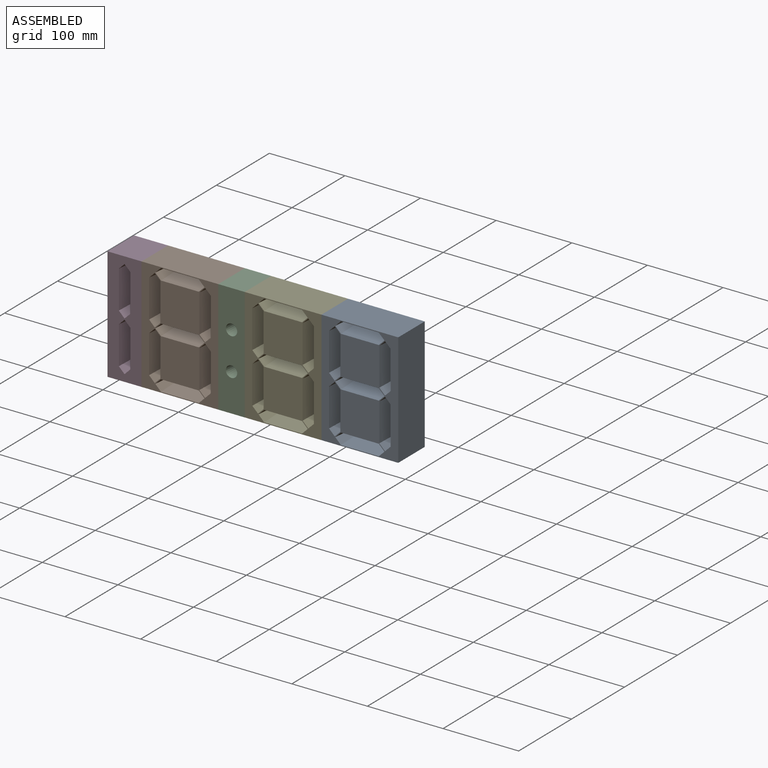
[diagram: assembled view]
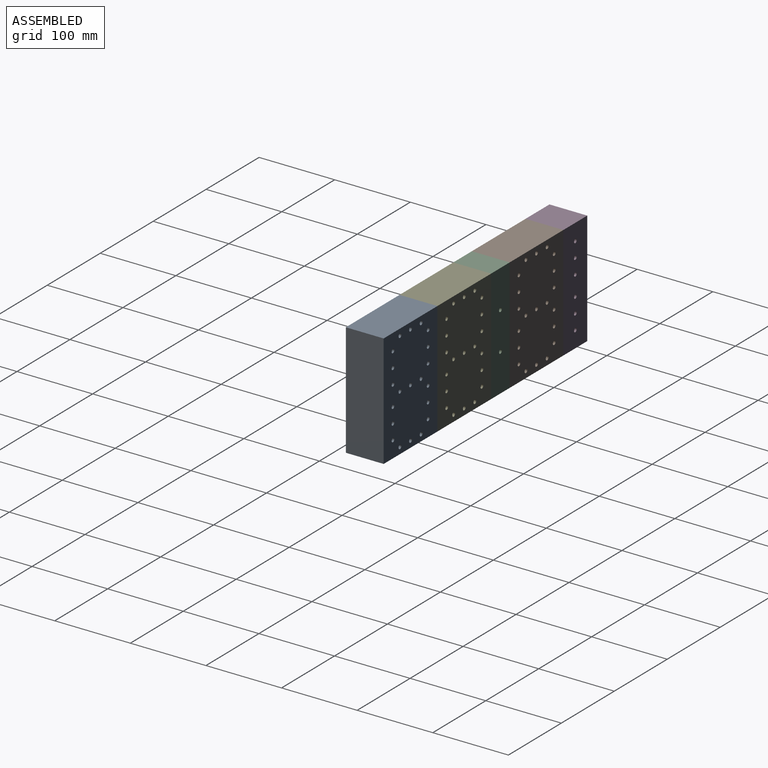
[diagram: assembled view, second angle]
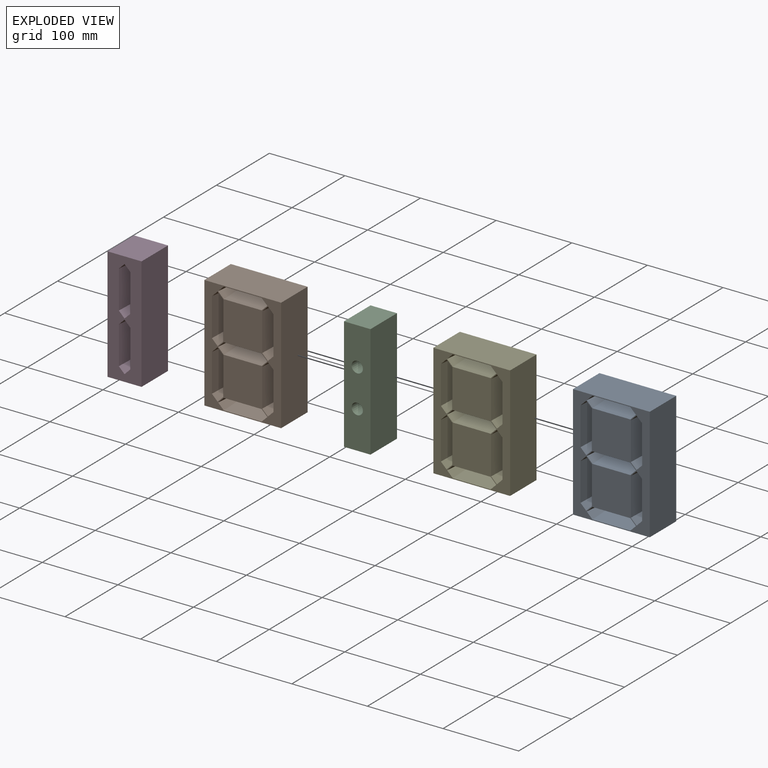
[diagram: exploded view]
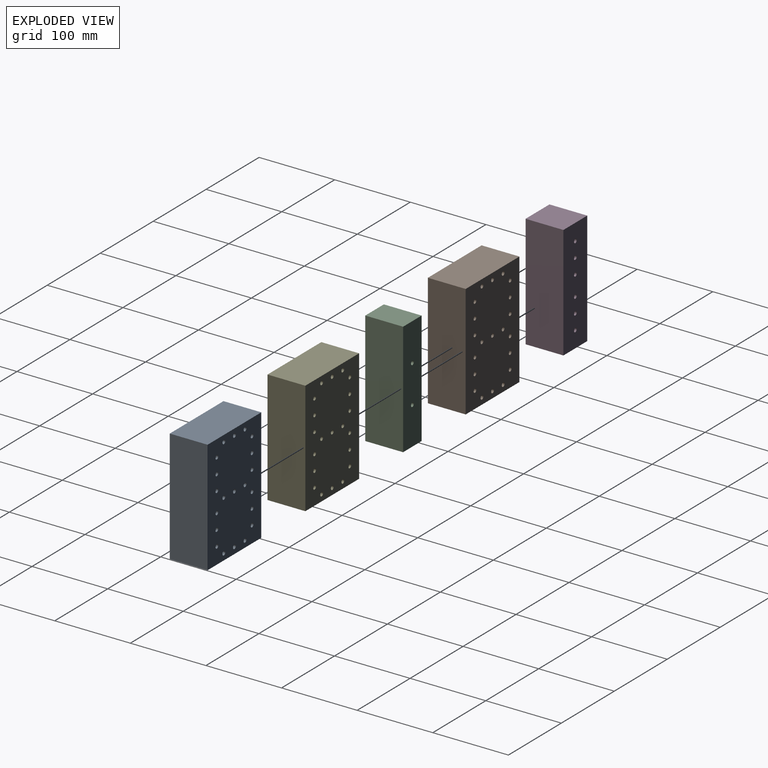
[diagram: exploded view, second angle]
ASSEMBLY  parts=5 mates=4
PART A: 76 faces, bbox 101.5x50x150 mm
  f0: cylinder r=2.55mm len=5.1mm, axis (0,-1,0), area 40.1mm2, adj f25,f69
  f1: cylinder r=2.55mm len=5.1mm, axis (0,-1,0), area 40.1mm2, adj f25,f69
  f2: cylinder r=2.55mm len=5.1mm, axis (0,-1,0), area 40.1mm2, adj f25,f48
  f3: cylinder r=2.55mm len=5.1mm, axis (0,-1,0), area 40.1mm2, adj f25,f48
  f4: cylinder r=2.55mm len=5.1mm, axis (0,-1,0), area 40.1mm2, adj f25,f48
  f5: cylinder r=2.55mm len=5.1mm, axis (0,-1,0), area 40.1mm2, adj f25,f55
  f6: cylinder r=2.55mm len=5.1mm, axis (0,-1,0), area 40.1mm2, adj f25,f55
  f7: cylinder r=2.55mm len=5.1mm, axis (0,-1,0), area 40.1mm2, adj f25,f55
  f8: cylinder r=2.55mm len=5.1mm, axis (0,-1,0), area 40.1mm2, adj f25,f27
  f9: cylinder r=2.55mm len=5.1mm, axis (0,-1,0), area 40.1mm2, adj f25,f27
  f10: cylinder r=2.55mm len=5.1mm, axis (0,-1,0), area 40.1mm2, adj f25,f27
  f11: cylinder r=2.55mm len=5.1mm, axis (0,-1,0), area 40.1mm2, adj f25,f34
  f12: cylinder r=2.55mm len=5.1mm, axis (0,-1,0), area 40.1mm2, adj f25,f34
  f13: cylinder r=2.55mm len=5.1mm, axis (0,-1,0), area 40.1mm2, adj f25,f34
  f14: cylinder r=2.55mm len=5.1mm, axis (0,-1,0), area 40.1mm2, adj f25,f41
  f15: cylinder r=2.55mm len=5.1mm, axis (0,-1,0), area 40.1mm2, adj f25,f41
  f16: cylinder r=2.55mm len=5.1mm, axis (0,-1,0), area 40.1mm2, adj f25,f41
  f17: cylinder r=2.55mm len=5.1mm, axis (0,-1,0), area 40.1mm2, adj f25,f62
  f18: cylinder r=2.55mm len=5.1mm, axis (0,-1,0), area 40.1mm2, adj f25,f62
  f19: cylinder r=2.55mm len=5.1mm, axis (0,-1,0), area 40.1mm2, adj f25,f62
  f20: cylinder r=2.55mm len=5.1mm, axis (0,-1,0), area 40.1mm2, adj f25,f69
  f21: plane 150x50mm, normal (-1,0,0), area 7500mm2, adj f22,f24,f25,f26
  f22: plane 101.5x50mm, normal (0,0,-1), area 5075mm2, adj f21,f23,f25,f26
  f23: plane 150x50mm, normal (1,0,0), area 7500mm2, adj f22,f24,f25,f26
  f24: plane 101.5x50mm, normal (0,0,1), area 5075mm2, adj f21,f23,f25,f26
  f25: plane 150x101.5mm, normal (0,1,0), area 14796mm2, adj f0,f1,f2,f3,f4,f5,f6,f7
  f26: plane 150x101.5mm, normal (0,-1,0), area 9178.5mm2, adj f21,f22,f23,f24,f28,f29,f30,f31
  f27: plane 55.69x8.36mm, normal (0,-1,0), area 369.2mm2, adj f8,f9,f10,f28,f29,f30,f31,f32
  f28: plane 47.5x8.88mm, normal (-0.71,-0.07,0.71), area 393.2mm2, adj f26,f27,f29,f33
  f29: plane 50.09x47.5mm, normal (-1,-0.07,0), area 2319.4mm2, adj f26,f27,f28,f30
  f30: plane 47.5x8.88mm, normal (-0.71,-0.07,-0.71), area 393.2mm2, adj f26,f27,f29,f31
  f31: plane 47.5x8.88mm, normal (0.71,-0.07,-0.71), area 393.2mm2, adj f26,f27,f30,f32
  f32: plane 50.09x47.5mm, normal (1,-0.07,0), area 2319.4mm2, adj f26,f27,f31,f33
  f33: plane 47.5x8.88mm, normal (0.71,-0.07,0.71), area 393.2mm2, adj f26,f27,f28,f32
  f34: plane 55.69x8.36mm, normal (0,-1,0), area 369.2mm2, adj f11,f12,f13,f35,f36,f37,f38,f39
  f35: plane 47.5x8.88mm, normal (0.71,-0.07,0.71), area 393.2mm2, adj f26,f34,f36,f40
  f36: plane 50.09x47.5mm, normal (0,-0.07,1), area 2319.4mm2, adj f26,f34,f35,f37
  f37: plane 47.5x8.88mm, normal (-0.71,-0.07,0.71), area 393.2mm2, adj f26,f34,f36,f38
  f38: plane 47.5x8.88mm, normal (-0.71,-0.07,-0.71), area 393.2mm2, adj f26,f34,f37,f39
  f39: plane 50.09x47.5mm, normal (0,-0.07,-1), area 2319.4mm2, adj f26,f34,f38,f40
  f40: plane 47.5x8.88mm, normal (0.71,-0.07,-0.71), area 393.2mm2, adj f26,f34,f35,f39
  f41: plane 55.69x8.36mm, normal (0,-1,0), area 369.2mm2, adj f14,f15,f16,f42,f43,f44,f45,f46
  f42: plane 47.5x8.88mm, normal (0.71,-0.07,-0.71), area 393.2mm2, adj f26,f41,f43,f47
  f43: plane 50.09x47.5mm, normal (1,-0.07,0), area 2319.4mm2, adj f26,f41,f42,f44
  f44: plane 47.5x8.88mm, normal (0.71,-0.07,0.71), area 393.2mm2, adj f26,f41,f43,f45
  f45: plane 47.5x8.88mm, normal (-0.71,-0.07,0.71), area 393.2mm2, adj f26,f41,f44,f46
  f46: plane 50.09x47.5mm, normal (-1,-0.07,0), area 2319.4mm2, adj f26,f41,f45,f47
  f47: plane 47.5x8.88mm, normal (-0.71,-0.07,-0.71), area 393.2mm2, adj f26,f41,f42,f46
  f48: plane 55.69x8.36mm, normal (0,-1,0), area 369.2mm2, adj f2,f3,f4,f49,f50,f51,f52,f53
  f49: plane 47.5x8.88mm, normal (0.71,-0.07,-0.71), area 393.2mm2, adj f26,f48,f50,f54
  f50: plane 50.09x47.5mm, normal (1,-0.07,0), area 2319.4mm2, adj f26,f48,f49,f51
  f51: plane 47.5x8.88mm, normal (0.71,-0.07,0.71), area 393.2mm2, adj f26,f48,f50,f52
  f52: plane 47.5x8.88mm, normal (-0.71,-0.07,0.71), area 393.2mm2, adj f26,f48,f51,f53
  f53: plane 50.09x47.5mm, normal (-1,-0.07,0), area 2319.4mm2, adj f26,f48,f52,f54
  f54: plane 47.5x8.88mm, normal (-0.71,-0.07,-0.71), area 393.2mm2, adj f26,f48,f49,f53
  f55: plane 55.69x8.36mm, normal (0,-1,0), area 369.2mm2, adj f5,f6,f7,f56,f57,f58,f59,f60
  f56: plane 47.5x8.88mm, normal (0.71,-0.07,0.71), area 393.2mm2, adj f26,f55,f57,f61
  f57: plane 50.09x47.5mm, normal (0,-0.07,1), area 2319.4mm2, adj f26,f55,f56,f58
  f58: plane 47.5x8.88mm, normal (-0.71,-0.07,0.71), area 393.2mm2, adj f26,f55,f57,f59
  f59: plane 47.5x8.88mm, normal (-0.71,-0.07,-0.71), area 393.2mm2, adj f26,f55,f58,f60
  f60: plane 50.09x47.5mm, normal (0,-0.07,-1), area 2319.4mm2, adj f26,f55,f59,f61
  f61: plane 47.5x8.88mm, normal (0.71,-0.07,-0.71), area 393.2mm2, adj f26,f55,f56,f60
  f62: plane 55.69x8.36mm, normal (0,-1,0), area 369.2mm2, adj f17,f18,f19,f63,f64,f65,f66,f67
  f63: plane 47.5x8.88mm, normal (-0.71,-0.07,0.71), area 393.2mm2, adj f26,f62,f64,f68
  f64: plane 50.09x47.5mm, normal (-1,-0.07,0), area 2319.4mm2, adj f26,f62,f63,f65
  f65: plane 47.5x8.88mm, normal (-0.71,-0.07,-0.71), area 393.2mm2, adj f26,f62,f64,f66
  f66: plane 47.5x8.88mm, normal (0.71,-0.07,-0.71), area 393.2mm2, adj f26,f62,f65,f67
  f67: plane 50.09x47.5mm, normal (1,-0.07,0), area 2319.4mm2, adj f26,f62,f66,f68
  f68: plane 47.5x8.88mm, normal (0.71,-0.07,0.71), area 393.2mm2, adj f26,f62,f63,f67
  f69: plane 55.69x8.36mm, normal (0,-1,0), area 369.2mm2, adj f0,f1,f20,f70,f71,f72,f73,f74
  f70: plane 47.5x8.88mm, normal (0.71,-0.07,0.71), area 393.2mm2, adj f26,f69,f71,f75
  f71: plane 50.09x47.5mm, normal (0,-0.07,1), area 2319.4mm2, adj f26,f69,f70,f72
  f72: plane 47.5x8.88mm, normal (-0.71,-0.07,0.71), area 393.2mm2, adj f26,f69,f71,f73
  f73: plane 47.5x8.88mm, normal (-0.71,-0.07,-0.71), area 393.2mm2, adj f26,f69,f72,f74
  f74: plane 50.09x47.5mm, normal (0,-0.07,-1), area 2319.4mm2, adj f26,f69,f73,f75
  f75: plane 47.5x8.88mm, normal (0.71,-0.07,-0.71), area 393.2mm2, adj f26,f69,f70,f74
PART B: same geometry as A
PART C: 12 faces, bbox 35x50x150 mm
  f0: cylinder r=2.55mm len=5.1mm, axis (0,-1,0), area 40.1mm2, adj f7,f8
  f1: cylinder r=2.55mm len=5.1mm, axis (0,-1,0), area 40.1mm2, adj f7,f10
  f2: plane 150x35mm, normal (0,-1,0), area 4896.6mm2, adj f3,f4,f5,f6,f9,f11
  f3: plane 150x50mm, normal (-1,0,0), area 7500mm2, adj f2,f4,f6,f7
  f4: plane 50x35mm, normal (0,0,-1), area 1750mm2, adj f2,f3,f5,f7
  f5: plane 150x50mm, normal (1,0,0), area 7500mm2, adj f2,f4,f6,f7
  f6: plane 50x35mm, normal (0,0,1), area 1750mm2, adj f2,f3,f5,f7
  f7: plane 150x35mm, normal (0,1,0), area 5209.1mm2, adj f0,f1,f3,f4,f5,f6
  f8: plane 8.36x8.36mm, normal (0,-1,0), area 34.4mm2, adj f0,f9
  f9: cone r=7.5mm half-angle=4deg, axis (0,-1,0), area 1747mm2, adj f2,f8
  f10: plane 8.36x8.36mm, normal (0,-1,0), area 34.4mm2, adj f1,f11
  f11: cone r=7.5mm half-angle=4deg, axis (0,-1,0), area 1747mm2, adj f2,f10
PART D: 26 faces, bbox 45x50x150 mm
  f0: cylinder r=2.55mm len=5.1mm, axis (0,-1,0), area 40.1mm2, adj f10,f19
  f1: cylinder r=2.55mm len=5.1mm, axis (0,-1,0), area 40.1mm2, adj f10,f19
  f2: cylinder r=2.55mm len=5.1mm, axis (0,-1,0), area 40.1mm2, adj f10,f12
  f3: cylinder r=2.55mm len=5.1mm, axis (0,-1,0), area 40.1mm2, adj f10,f12
  f4: cylinder r=2.55mm len=5.1mm, axis (0,-1,0), area 40.1mm2, adj f10,f12
  f5: cylinder r=2.55mm len=5.1mm, axis (0,-1,0), area 40.1mm2, adj f10,f19
  f6: plane 150x50mm, normal (-1,0,0), area 7500mm2, adj f7,f9,f10,f11
  f7: plane 50x45mm, normal (0,0,-1), area 2250mm2, adj f6,f8,f10,f11
  f8: plane 150x50mm, normal (1,0,0), area 7500mm2, adj f7,f9,f10,f11
  f9: plane 50x45mm, normal (0,0,1), area 2250mm2, adj f6,f8,f10,f11
  f10: plane 150x45mm, normal (0,1,0), area 6627.4mm2, adj f0,f1,f2,f3,f4,f5,f6,f7
  f11: plane 150x45mm, normal (0,-1,0), area 5022.4mm2, adj f6,f7,f8,f9,f13,f14,f15,f16
  f12: plane 55.69x8.36mm, normal (0,-1,0), area 369.2mm2, adj f2,f3,f4,f13,f14,f15,f16,f17
  f13: plane 47.5x8.88mm, normal (0.71,-0.07,-0.71), area 393.2mm2, adj f11,f12,f14,f18
  f14: plane 50.09x47.5mm, normal (1,-0.07,0), area 2319.4mm2, adj f11,f12,f13,f15
  f15: plane 47.5x8.88mm, normal (0.71,-0.07,0.71), area 393.2mm2, adj f11,f12,f14,f16
  f16: plane 47.5x8.88mm, normal (-0.71,-0.07,0.71), area 393.2mm2, adj f11,f12,f15,f17
  f17: plane 50.09x47.5mm, normal (-1,-0.07,0), area 2319.4mm2, adj f11,f12,f16,f18
  f18: plane 47.5x8.88mm, normal (-0.71,-0.07,-0.71), area 393.2mm2, adj f11,f12,f13,f17
  f19: plane 55.69x8.36mm, normal (0,-1,0), area 369.2mm2, adj f0,f1,f5,f20,f21,f22,f23,f24
  f20: plane 47.5x8.88mm, normal (0.71,-0.07,-0.71), area 393.2mm2, adj f11,f19,f21,f25
  f21: plane 50.09x47.5mm, normal (1,-0.07,0), area 2319.4mm2, adj f11,f19,f20,f22
  f22: plane 47.5x8.88mm, normal (0.71,-0.07,0.71), area 393.2mm2, adj f11,f19,f21,f23
  f23: plane 47.5x8.88mm, normal (-0.71,-0.07,0.71), area 393.2mm2, adj f11,f19,f22,f24
  f24: plane 50.09x47.5mm, normal (-1,-0.07,0), area 2319.4mm2, adj f11,f19,f23,f25
  f25: plane 47.5x8.88mm, normal (-0.71,-0.07,-0.71), area 393.2mm2, adj f11,f19,f20,f24
PART E: same geometry as A
PLACE A t=(75.8,19.08,42.28)mm
PLACE B t=(-162.2,19.08,42.28)mm
PLACE C t=(-210.7,19.08,42.28)mm
PLACE D t=(-418.7,19.08,42.28)mm
PLACE E t=(-25.7,19.08,42.28)mm
MATE fastened C.f5 <-> E.f21  axis (1,0,0) through (-25.7,44.08,117.28)mm
MATE fastened D.f8 <-> B.f21  axis (1,0,0) through (-162.2,44.08,117.28)mm
MATE fastened B.f23 <-> C.f3  axis (1,0,0) through (-60.7,44.08,117.28)mm
MATE fastened E.f23 <-> A.f21  axis (1,0,0) through (75.8,44.08,117.28)mm
